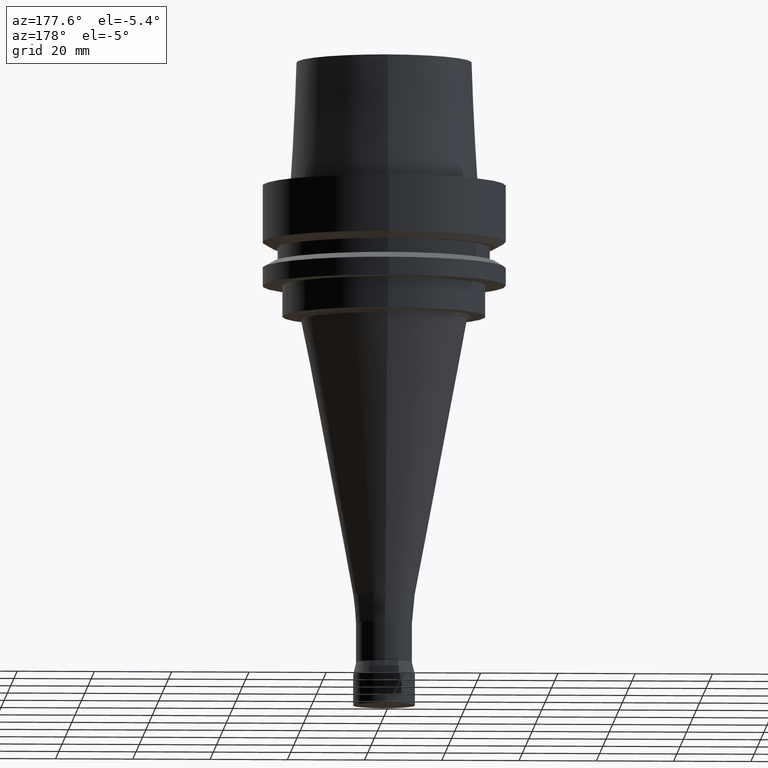
[diagram: clean part render]
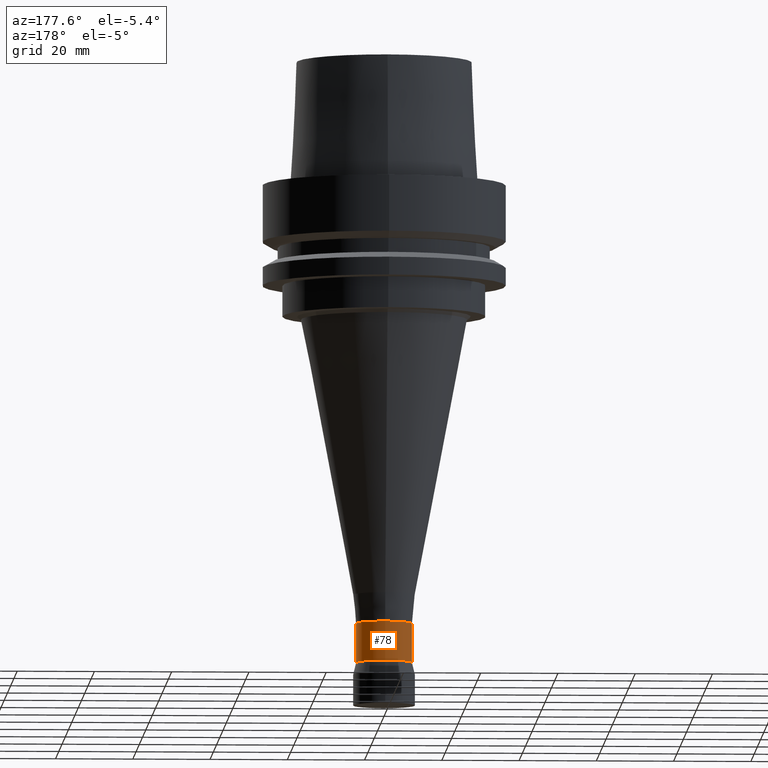
[diagram: same view with one face highlighted and labeled with its STEP entity id]
A machine part, auxiliary view. The second image highlights one B-rep face of the part: STEP entity #78.
In plain terms, the highlighted cylindrical surface (bore or boss wall) has radius 7.25 mm, axis along (-0, -0, 1).
Its self-contained STEP definition (entity closure, byte-faithful):
#78=ADVANCED_FACE('',(#104,#105),#106,.T.);
#104=FACE_BOUND('',#162,.T.);
#105=FACE_BOUND('',#163,.T.);
#106=CYLINDRICAL_SURFACE('',#164,7.25);
#162=EDGE_LOOP('',(#226));
#163=EDGE_LOOP('',(#227));
#164=AXIS2_PLACEMENT_3D('',#228,#229,#230);
#226=ORIENTED_EDGE('',*,*,#314,.F.);
#227=ORIENTED_EDGE('',*,*,#312,.T.);
#228=CARTESIAN_POINT('',(7.27589498844439E-015,1.45517899768888E-014,-118.824382565));
#229=DIRECTION('',(-6.12323399573677E-017,-1.22464679914735E-016,1.0));
#230=DIRECTION('',(-1.23259516440783E-032,1.0,1.22464679914735E-016));
#312=EDGE_CURVE('',#333,#333,#334,.T.);
#314=EDGE_CURVE('',#337,#337,#338,.T.);
#333=VERTEX_POINT('',#371);
#334=CIRCLE('',#372,7.25);
#337=VERTEX_POINT('',#375);
#338=CIRCLE('',#376,7.25);
#371=CARTESIAN_POINT('',(6.96589365018041E-015,7.25000000000001,-113.76167651));
#372=AXIS2_PLACEMENT_3D('',#411,#412,#413);
#375=CARTESIAN_POINT('',(7.58589632670837E-015,7.25000000000002,-123.88708862));
#376=AXIS2_PLACEMENT_3D('',#417,#418,#419);
#411=CARTESIAN_POINT('',(6.96589365018041E-015,1.39317873003608E-014,-113.76167651));
#412=DIRECTION('',(6.12323399573677E-017,1.22464679914735E-016,-1.0));
#413=DIRECTION('',(-1.23259516440783E-032,1.0,1.22464679914735E-016));
#417=CARTESIAN_POINT('',(7.58589632670837E-015,1.51717926534167E-014,-123.88708862));
#418=DIRECTION('',(6.12323399573677E-017,1.22464679914735E-016,-1.0));
#419=DIRECTION('',(-1.23259516440783E-032,1.0,1.22464679914735E-016));